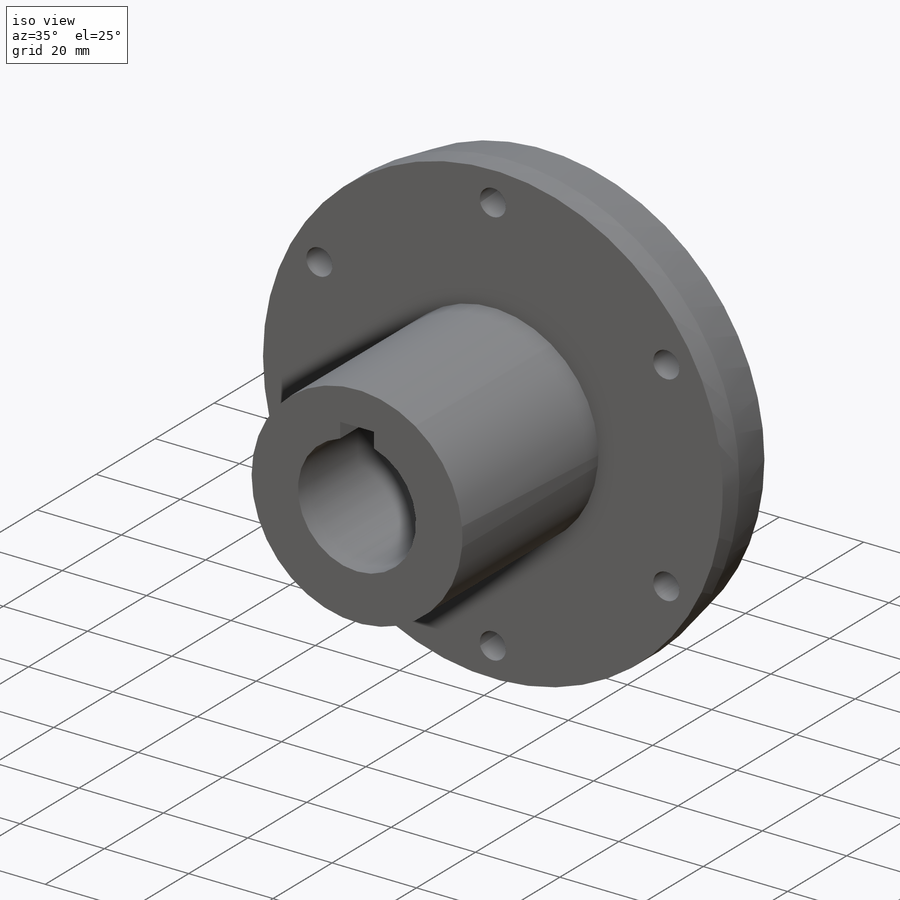
[diagram: iso view]
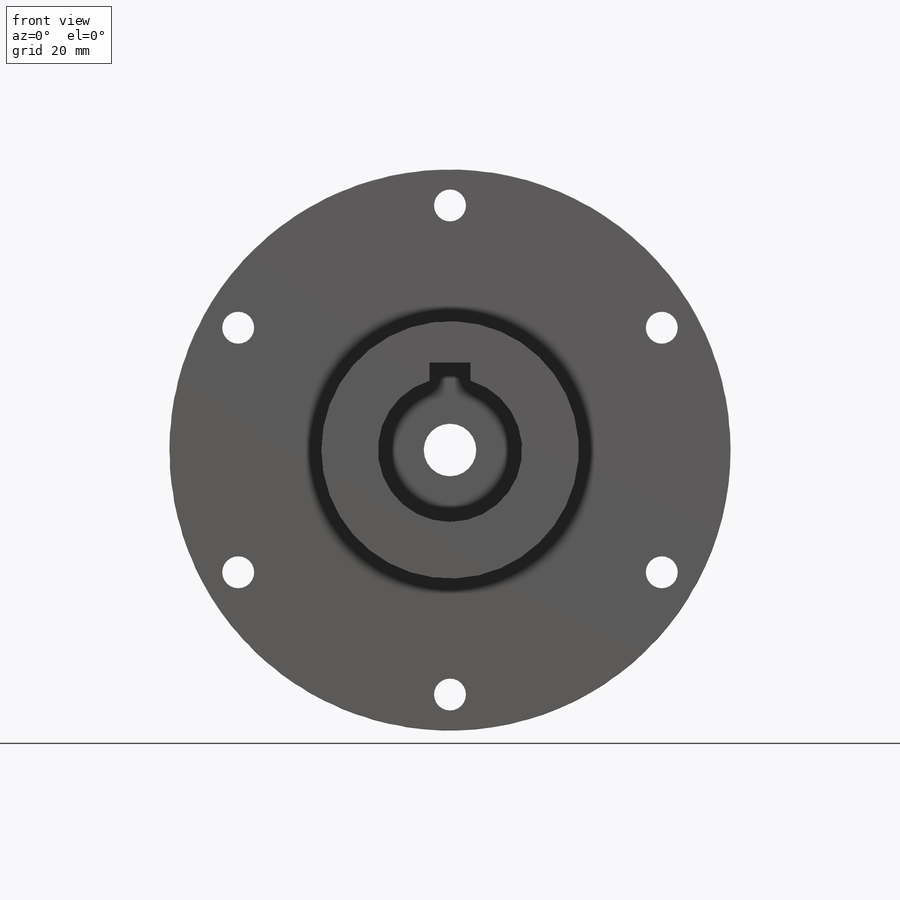
[diagram: front view]
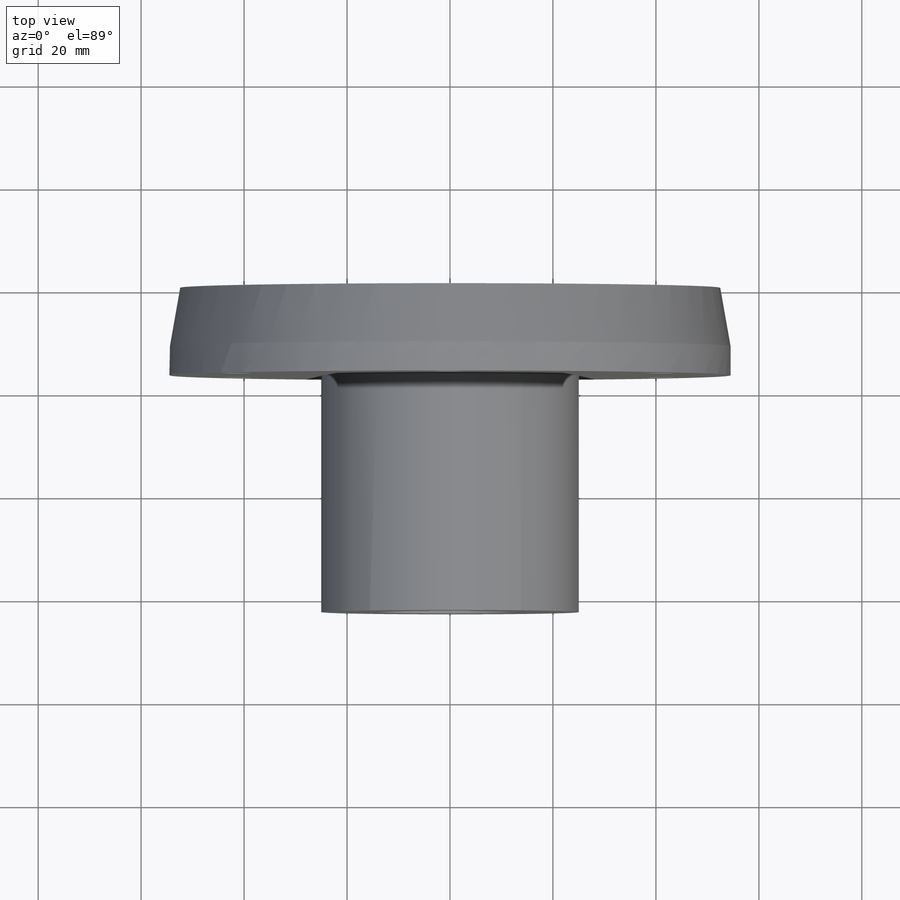
[diagram: top view]
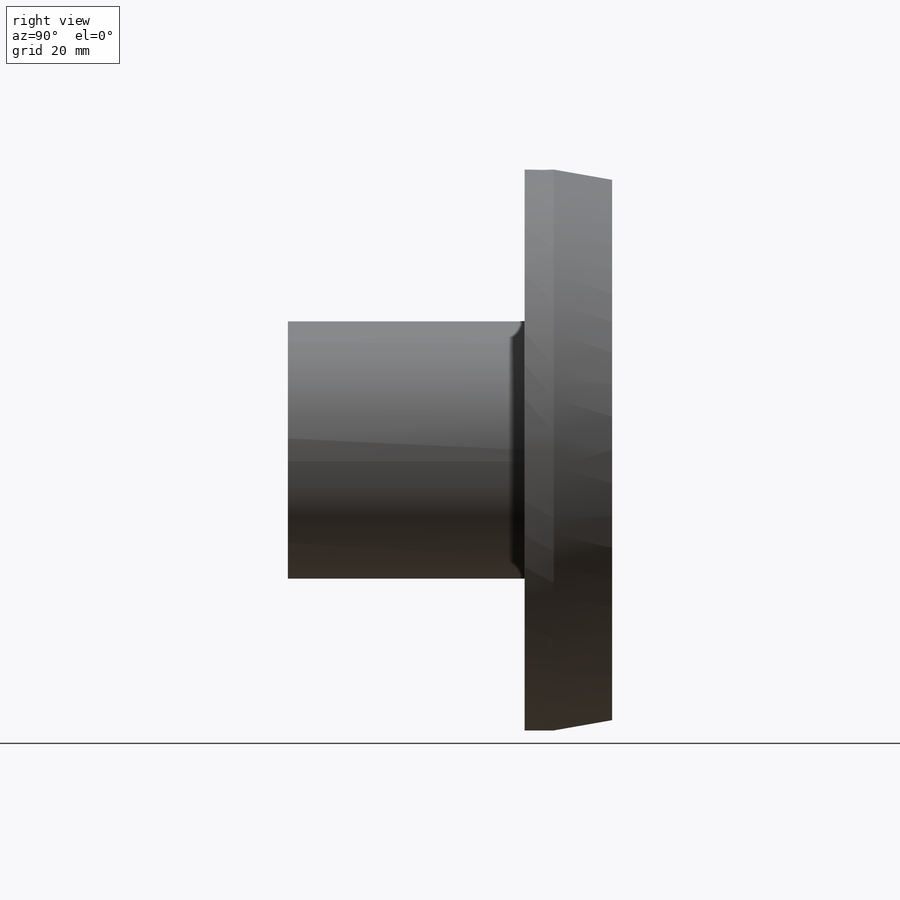
[diagram: right view]
SOLIDWORKS PART (.sldprt)
format: sldprt  version: not decoded by parser v0  size: 229,888 bytes
history: native  units: mm
features: sketch x5, plane x3, cut_extrude x3, extrude x2, material x1, chamfer x1 (+10 scaffold rows collapsed)
feature tree (25):
  scaffold x10  (default folders/planes/origin — collapsed)
  material  "Matériau <non spécifié>"
  plane  "Plan de face"
  plane  "Plan de dessus"
  plane  "Plan de droite"
  sketch  "Esquisse1"  dims[D1=109.0mm]
  extrude  "Boss.-Extru.1"  Depth=17mm
  sketch  "Esquisse5"  dims[D1=~32.646813mm]
  extrude  "Boss.-Extru.4"  Depth=46mm
  sketch  "Esquisse7"  dims[c1.D1=~15.19142mm c1.D4=28.0mm c2.D1=8.0mm c2.D2=~13.99701mm c3.D2=~1.184199deg c4.D2=4.0mm c4.D3=17.0mm]
  cut_extrude  "Enlèv. mat.-Extru.2"  Depth=56mm
  sketch  "Esquisse8"  dims[D1=10.2mm]
  cut_extrude  "Enlèv. mat.-Extru.3"  Depth=76mm
  sketch  "Esquisse9"  dims[c1.D1=6.2mm c1.D3=95.0mm c2.D1=6.2mm c2.D2=47.5mm c3.D2=6.0]
  cut_extrude  "Enlèv. mat.-Extru.4"  Depth=76mm
  chamfer  "Chanfrein1"  Distance=2mm
decode coverage: 11 of 11 modeling features carry decoded parameters
note: ~ marks probable driven/reference dimensions
note: suppression state not decoded; provenance and decode notes live in map.json
